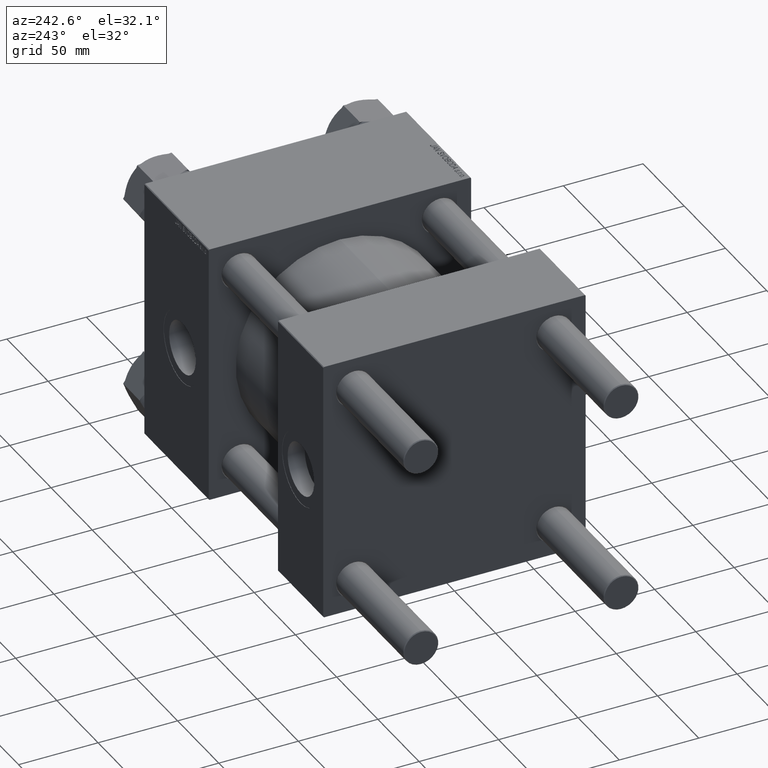
[diagram: clean part render]
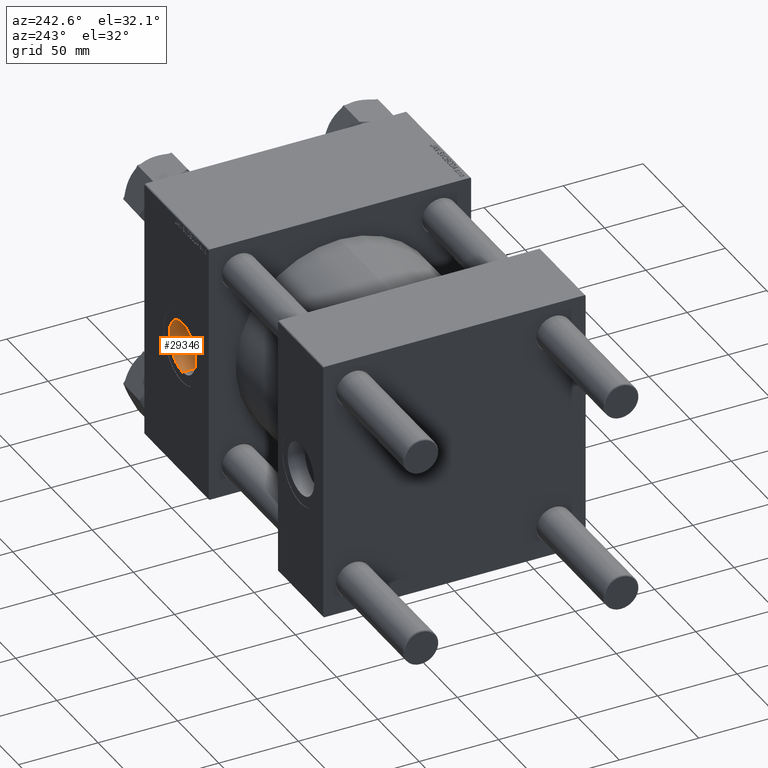
[diagram: same view with one face highlighted and labeled with its STEP entity id]
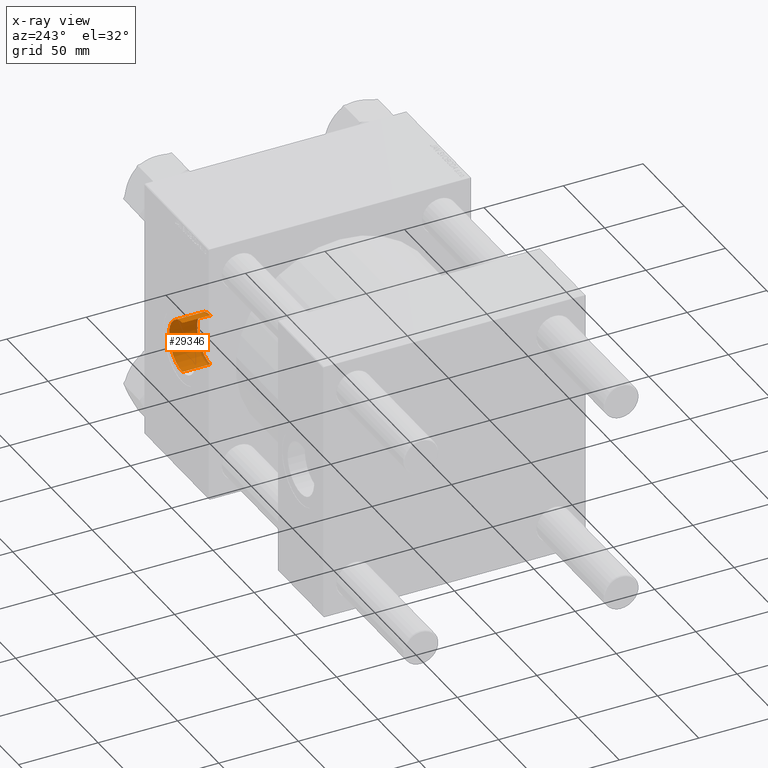
[diagram: x-ray of the same camera — body ghosted, the highlighted face saturated]
A machine part, auxiliary view. The second image highlights one B-rep face of the part: STEP entity #29346.
The next image is the same camera in x-ray: the body ghosted, the highlighted face saturated — about 8% of this face is hidden behind the body in this view.
In plain terms, the highlighted cylindrical surface (edge-blend (fillet) strip) has radius 16.12 mm, axis along (0, 1, 0).
Its self-contained STEP definition (entity closure, byte-faithful):
#943 = CARTESIAN_POINT ( 'NONE',  ( 171.2400000000000091, 64.70000000000001705, 0.000000000000000000 ) ) ;
#1272 = CARTESIAN_POINT ( 'NONE',  ( 171.2400000000000091, 64.70000000000001705, 16.11999999999998678 ) ) ;
#2031 = DIRECTION ( 'NONE',  ( -0.000000000000000000, 1.000000000000000000, -0.000000000000000000 ) ) ;
#4568 = VECTOR ( 'NONE', #29848, 1000.000000000000000 ) ;
#5854 = LINE ( 'NONE', #1272, #16691 ) ;
#6020 = ORIENTED_EDGE ( 'NONE', *, *, #49385, .F. ) ;
#6339 = CARTESIAN_POINT ( 'NONE',  ( 171.2400000000000091, 82.30000000000001137, 0.000000000000000000 ) ) ;
#7068 = ORIENTED_EDGE ( 'NONE', *, *, #13776, .T. ) ;
#9639 = VERTEX_POINT ( 'NONE', #27858 ) ;
#10991 = CARTESIAN_POINT ( 'NONE',  ( 171.2400000000000091, 64.70000000000001705, 0.000000000000000000 ) ) ;
#11439 = CARTESIAN_POINT ( 'NONE',  ( 171.2400000000000091, 64.70000000000001705, 16.11999999999998678 ) ) ;
#13231 = DIRECTION ( 'NONE',  ( 0.000000000000000000, 0.000000000000000000, 1.000000000000000000 ) ) ;
#13776 = EDGE_CURVE ( 'NONE', #37084, #9639, #5854, .T. ) ;
#14046 = FACE_OUTER_BOUND ( 'NONE', #33805, .T. ) ;
#16691 = VECTOR ( 'NONE', #2031, 1000.000000000000000 ) ;
#17995 = AXIS2_PLACEMENT_3D ( 'NONE', #943, #43315, #48148 ) ;
#18870 = CARTESIAN_POINT ( 'NONE',  ( 171.2400000000000091, 64.70000000000001705, -16.11999999999998678 ) ) ;
#20246 = ORIENTED_EDGE ( 'NONE', *, *, #36471, .F. ) ;
#22353 = ORIENTED_EDGE ( 'NONE', *, *, #46772, .T. ) ;
#27858 = CARTESIAN_POINT ( 'NONE',  ( 171.2400000000000091, 82.30000000000001137, 16.11999999999998678 ) ) ;
#28490 = AXIS2_PLACEMENT_3D ( 'NONE', #10991, #41108, #29617 ) ;
#28631 = CARTESIAN_POINT ( 'NONE',  ( 171.2400000000000091, 82.30000000000001137, -16.11999999999998678 ) ) ;
#29346 = ADVANCED_FACE ( 'NONE', ( #14046 ), #33189, .F. ) ;
#29617 = DIRECTION ( 'NONE',  ( 0.000000000000000000, 0.000000000000000000, 1.000000000000000000 ) ) ;
#29848 = DIRECTION ( 'NONE',  ( -0.000000000000000000, 1.000000000000000000, -0.000000000000000000 ) ) ;
#32170 = CIRCLE ( 'NONE', #41151, 16.11999999999998678 ) ;
#33119 = DIRECTION ( 'NONE',  ( 0.000000000000000000, 1.000000000000000000, 0.000000000000000000 ) ) ;
#33189 = CYLINDRICAL_SURFACE ( 'NONE', #28490, 16.11999999999998678 ) ;
#33805 = EDGE_LOOP ( 'NONE', ( #6020, #20246, #7068, #22353 ) ) ;
#36471 = EDGE_CURVE ( 'NONE', #37084, #41226, #39992, .T. ) ;
#37084 = VERTEX_POINT ( 'NONE', #11439 ) ;
#37746 = VERTEX_POINT ( 'NONE', #28631 ) ;
#38256 = LINE ( 'NONE', #18870, #4568 ) ;
#39992 = CIRCLE ( 'NONE', #17995, 16.11999999999998678 ) ;
#41108 = DIRECTION ( 'NONE',  ( -0.000000000000000000, 1.000000000000000000, -0.000000000000000000 ) ) ;
#41151 = AXIS2_PLACEMENT_3D ( 'NONE', #6339, #33119, #13231 ) ;
#41226 = VERTEX_POINT ( 'NONE', #45646 ) ;
#43315 = DIRECTION ( 'NONE',  ( 0.000000000000000000, 1.000000000000000000, 0.000000000000000000 ) ) ;
#45646 = CARTESIAN_POINT ( 'NONE',  ( 171.2400000000000091, 64.70000000000001705, -16.11999999999998678 ) ) ;
#46772 = EDGE_CURVE ( 'NONE', #9639, #37746, #32170, .T. ) ;
#48148 = DIRECTION ( 'NONE',  ( 0.000000000000000000, 0.000000000000000000, 1.000000000000000000 ) ) ;
#49385 = EDGE_CURVE ( 'NONE', #41226, #37746, #38256, .T. ) ;